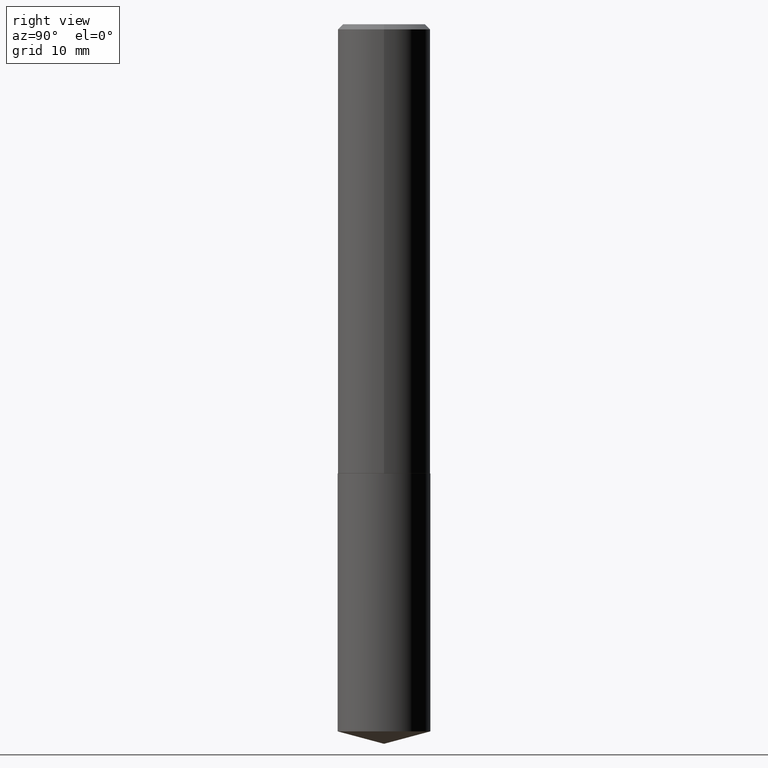
[diagram: clean part render]
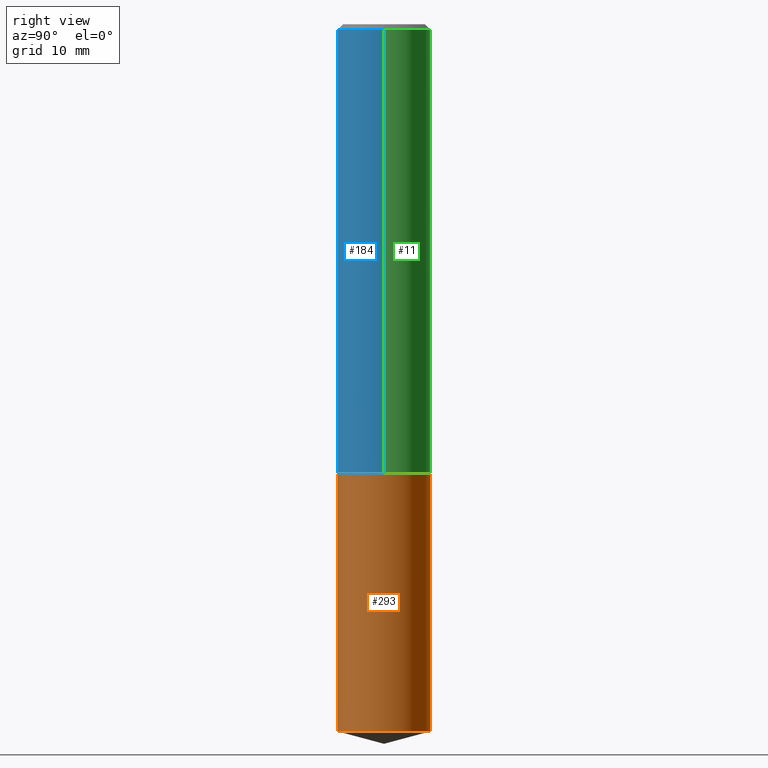
[diagram: same view with three faces highlighted in distinct colors, each labeled with its STEP entity id]
A machine part, right view with three faces highlighted in distinct colors.
Their STEP definitions:

[orange] entity #293 — the highlighted cylindrical surface (partial cylindrical patch) has radius 7.1501 mm, axis along (-0, 0, 1).
#15 = VERTEX_POINT ( 'NONE', #265 ) ;
#40 = CIRCLE ( 'NONE', #51, 0.2814999999999999725 ) ;
#47 = CARTESIAN_POINT ( 'NONE',  ( 2.000177801164748486E-15, 0.2814999999999904801, -2.728400000000001491 ) ) ;
#48 = CARTESIAN_POINT ( 'NONE',  ( -1.965703993768616963E-15, -0.2815000000000095204, -2.728399999999999270 ) ) ;
#51 = AXIS2_PLACEMENT_3D ( 'NONE', #130, #154, #366 ) ;
#52 = ORIENTED_EDGE ( 'NONE', *, *, #384, .F. ) ;
#60 = ORIENTED_EDGE ( 'NONE', *, *, #251, .T. ) ;
#69 = CARTESIAN_POINT ( 'NONE',  ( 6.672217090795527604E-29, -9.526157684899640905E-15, -2.728400000000000158 ) ) ;
#71 = DIRECTION ( 'NONE',  ( -6.982962677686265922E-15, -1.000000000000000000, 3.881844395970533976E-15 ) ) ;
#74 = DIRECTION ( 'NONE',  ( -2.445301347483331542E-29, 3.491721149235287761E-15, 1.000000000000000000 ) ) ;
#83 = VERTEX_POINT ( 'NONE', #320 ) ;
#125 = DIRECTION ( 'NONE',  ( -2.445301347483331542E-29, 3.491721149235287367E-15, 1.000000000000000000 ) ) ;
#130 = CARTESIAN_POINT ( 'NONE',  ( 1.050222486221045995E-28, -1.499514380840898218E-14, -4.294672302330639901 ) ) ;
#136 = EDGE_CURVE ( 'NONE', #146, #15, #258, .T. ) ;
#137 = VERTEX_POINT ( 'NONE', #48 ) ;
#146 = VERTEX_POINT ( 'NONE', #376 ) ;
#154 = DIRECTION ( 'NONE',  ( -2.445301347483331542E-29, 3.491721149235287761E-15, 1.000000000000000000 ) ) ;
#163 = AXIS2_PLACEMENT_3D ( 'NONE', #188, #252, #71 ) ;
#164 = CYLINDRICAL_SURFACE ( 'NONE', #193, 0.2814999999999999725 ) ;
#180 = ORIENTED_EDGE ( 'NONE', *, *, #136, .T. ) ;
#188 = CARTESIAN_POINT ( 'NONE',  ( 6.672217090795527604E-29, -9.526157684899640905E-15, -2.728400000000000158 ) ) ;
#193 = AXIS2_PLACEMENT_3D ( 'NONE', #69, #74, #246 ) ;
#217 = EDGE_LOOP ( 'NONE', ( #60, #180, #52, #346 ) ) ;
#222 = FACE_OUTER_BOUND ( 'NONE', #217, .T. ) ;
#235 = CARTESIAN_POINT ( 'NONE',  ( -1.965703993768616963E-15, -0.2815000000000095204, -2.728399999999999270 ) ) ;
#246 = DIRECTION ( 'NONE',  ( -6.982962677686265922E-15, -1.000000000000000000, 3.881844395970533976E-15 ) ) ;
#249 = EDGE_CURVE ( 'NONE', #83, #137, #273, .T. ) ;
#251 = EDGE_CURVE ( 'NONE', #83, #146, #40, .T. ) ;
#252 = DIRECTION ( 'NONE',  ( -2.445301347483331542E-29, 3.491721149235287761E-15, 1.000000000000000000 ) ) ;
#258 = LINE ( 'NONE', #47, #372 ) ;
#262 = VECTOR ( 'NONE', #125, 39.37007874015748143 ) ;
#265 = CARTESIAN_POINT ( 'NONE',  ( 2.000177801164787141E-15, 0.2814999999999904801, -2.728400000000001491 ) ) ;
#273 = LINE ( 'NONE', #235, #262 ) ;
#293 = ADVANCED_FACE ( 'NONE', ( #222 ), #164, .T. ) ;
#320 = CARTESIAN_POINT ( 'NONE',  ( -1.965703993768577914E-15, -0.2815000000000149050, -4.294672302330639013 ) ) ;
#346 = ORIENTED_EDGE ( 'NONE', *, *, #249, .F. ) ;
#355 = CIRCLE ( 'NONE', #163, 0.2814999999999999725 ) ;
#366 = DIRECTION ( 'NONE',  ( -6.982962677686265922E-15, -1.000000000000000000, 3.881844395970533976E-15 ) ) ;
#372 = VECTOR ( 'NONE', #382, 39.37007874015748143 ) ;
#376 = CARTESIAN_POINT ( 'NONE',  ( 2.000177801164786352E-15, 0.2814999999999848734, -4.294672302330640790 ) ) ;
#382 = DIRECTION ( 'NONE',  ( -2.445301347483331542E-29, 3.491721149235287367E-15, 1.000000000000000000 ) ) ;
#384 = EDGE_CURVE ( 'NONE', #137, #15, #355, .T. ) ;

[blue] entity #184 — the highlighted cylindrical surface (partial cylindrical patch) has radius 7.1501 mm, axis along (-0, 0, 1).
#14 = EDGE_CURVE ( 'NONE', #322, #348, #260, .T. ) ;
#16 = DIRECTION ( 'NONE',  ( -2.445468806185136597E-29, 3.491481338843145583E-15, 1.000000000000000000 ) ) ;
#23 = CARTESIAN_POINT ( 'NONE',  ( 6.670994356392434802E-29, -9.524411944230218613E-15, -2.727899999999999991 ) ) ;
#30 = VERTEX_POINT ( 'NONE', #267 ) ;
#75 = DIRECTION ( 'NONE',  ( 1.000000000000000000, -6.982962677686264344E-15, 0.000000000000000000 ) ) ;
#78 = CARTESIAN_POINT ( 'NONE',  ( -0.2815000000000003055, -7.524234143065534418E-15, -2.727899999999999991 ) ) ;
#85 = VERTEX_POINT ( 'NONE', #78 ) ;
#118 = LINE ( 'NONE', #147, #213 ) ;
#128 = CARTESIAN_POINT ( 'NONE',  ( 0.2815000000000001390, -1.965703993768684805E-15, 1.372643762386556638E-29 ) ) ;
#139 = VECTOR ( 'NONE', #239, 39.37007874015748143 ) ;
#147 = CARTESIAN_POINT ( 'NONE',  ( -0.2815000000000001390, 2.000177801164683011E-15, -1.384680227906756714E-29 ) ) ;
#151 = DIRECTION ( 'NONE',  ( -2.445468806185136597E-29, 3.491481338843145583E-15, 1.000000000000000000 ) ) ;
#155 = DIRECTION ( 'NONE',  ( -2.445468806185136597E-29, 3.491481338843145583E-15, 1.000000000000000000 ) ) ;
#166 = EDGE_CURVE ( 'NONE', #85, #322, #118, .T. ) ;
#182 = CYLINDRICAL_SURFACE ( 'NONE', #302, 0.2815000000000001390 ) ;
#184 = ADVANCED_FACE ( 'NONE', ( #233 ), #182, .T. ) ;
#211 = CARTESIAN_POINT ( 'NONE',  ( 7.642090019328603538E-31, -1.091087918388490390E-16, -0.03125000000000021511 ) ) ;
#213 = VECTOR ( 'NONE', #230, 39.37007874015748143 ) ;
#216 = CARTESIAN_POINT ( 'NONE',  ( 0.000000000000000000, 0.000000000000000000, 0.000000000000000000 ) ) ;
#218 = CARTESIAN_POINT ( 'NONE',  ( -0.2814999999999999725, -2.816582566869850057E-15, -0.03125000000000021511 ) ) ;
#228 = CIRCLE ( 'NONE', #287, 0.2815000000000003055 ) ;
#230 = DIRECTION ( 'NONE',  ( -2.445468806185136877E-29, 3.491481338843145188E-15, 1.000000000000000000 ) ) ;
#233 = FACE_OUTER_BOUND ( 'NONE', #310, .T. ) ;
#238 = ORIENTED_EDGE ( 'NONE', *, *, #261, .T. ) ;
#239 = DIRECTION ( 'NONE',  ( -2.445468806185136877E-29, 3.491481338843145188E-15, 1.000000000000000000 ) ) ;
#254 = AXIS2_PLACEMENT_3D ( 'NONE', #211, #151, #334 ) ;
#260 = CIRCLE ( 'NONE', #254, 0.2814999999999999725 ) ;
#261 = EDGE_CURVE ( 'NONE', #30, #348, #271, .T. ) ;
#267 = CARTESIAN_POINT ( 'NONE',  ( 0.2815000000000003055, -1.149011593799890421E-14, -2.727899999999999991 ) ) ;
#271 = LINE ( 'NONE', #128, #139 ) ;
#282 = ORIENTED_EDGE ( 'NONE', *, *, #14, .F. ) ;
#284 = ORIENTED_EDGE ( 'NONE', *, *, #166, .F. ) ;
#287 = AXIS2_PLACEMENT_3D ( 'NONE', #23, #16, #75 ) ;
#296 = ORIENTED_EDGE ( 'NONE', *, *, #316, .T. ) ;
#302 = AXIS2_PLACEMENT_3D ( 'NONE', #216, #155, #362 ) ;
#310 = EDGE_LOOP ( 'NONE', ( #284, #296, #238, #282 ) ) ;
#316 = EDGE_CURVE ( 'NONE', #85, #30, #228, .T. ) ;
#322 = VERTEX_POINT ( 'NONE', #218 ) ;
#334 = DIRECTION ( 'NONE',  ( 1.000000000000000000, -6.982962677686267499E-15, 0.000000000000000000 ) ) ;
#341 = CARTESIAN_POINT ( 'NONE',  ( 0.2814999999999999725, -2.074812785607533117E-15, -0.03125000000000021511 ) ) ;
#348 = VERTEX_POINT ( 'NONE', #341 ) ;
#362 = DIRECTION ( 'NONE',  ( 1.000000000000000000, -6.982962677686265922E-15, 4.876176775795935793E-29 ) ) ;

[green] entity #11 — the highlighted cylindrical surface (partial cylindrical patch) has radius 7.1501 mm, axis along (-0, 0, 1).
#10 = CIRCLE ( 'NONE', #153, 0.2815000000000003055 ) ;
#11 = ADVANCED_FACE ( 'NONE', ( #91 ), #95, .T. ) ;
#20 = ORIENTED_EDGE ( 'NONE', *, *, #261, .F. ) ;
#30 = VERTEX_POINT ( 'NONE', #267 ) ;
#33 = DIRECTION ( 'NONE',  ( -2.445468806185136597E-29, 3.491481338843145583E-15, 1.000000000000000000 ) ) ;
#59 = DIRECTION ( 'NONE',  ( -2.445468806185136597E-29, 3.491481338843145583E-15, 1.000000000000000000 ) ) ;
#67 = CARTESIAN_POINT ( 'NONE',  ( 6.670994356392434802E-29, -9.524411944230218613E-15, -2.727899999999999991 ) ) ;
#78 = CARTESIAN_POINT ( 'NONE',  ( -0.2815000000000003055, -7.524234143065534418E-15, -2.727899999999999991 ) ) ;
#81 = AXIS2_PLACEMENT_3D ( 'NONE', #203, #59, #175 ) ;
#85 = VERTEX_POINT ( 'NONE', #78 ) ;
#89 = CIRCLE ( 'NONE', #81, 0.2814999999999999725 ) ;
#91 = FACE_OUTER_BOUND ( 'NONE', #338, .T. ) ;
#95 = CYLINDRICAL_SURFACE ( 'NONE', #269, 0.2815000000000001390 ) ;
#97 = DIRECTION ( 'NONE',  ( -2.445468806185136597E-29, 3.491481338843145583E-15, 1.000000000000000000 ) ) ;
#118 = LINE ( 'NONE', #147, #213 ) ;
#128 = CARTESIAN_POINT ( 'NONE',  ( 0.2815000000000001390, -1.965703993768684805E-15, 1.372643762386556638E-29 ) ) ;
#139 = VECTOR ( 'NONE', #239, 39.37007874015748143 ) ;
#147 = CARTESIAN_POINT ( 'NONE',  ( -0.2815000000000001390, 2.000177801164683011E-15, -1.384680227906756714E-29 ) ) ;
#148 = ORIENTED_EDGE ( 'NONE', *, *, #187, .T. ) ;
#152 = DIRECTION ( 'NONE',  ( 1.000000000000000000, -6.982962677686264344E-15, 0.000000000000000000 ) ) ;
#153 = AXIS2_PLACEMENT_3D ( 'NONE', #67, #97, #152 ) ;
#166 = EDGE_CURVE ( 'NONE', #85, #322, #118, .T. ) ;
#175 = DIRECTION ( 'NONE',  ( 1.000000000000000000, -6.982962677686267499E-15, 0.000000000000000000 ) ) ;
#179 = EDGE_CURVE ( 'NONE', #348, #322, #89, .T. ) ;
#187 = EDGE_CURVE ( 'NONE', #30, #85, #10, .T. ) ;
#203 = CARTESIAN_POINT ( 'NONE',  ( 7.642090019328603538E-31, -1.091087918388490390E-16, -0.03125000000000021511 ) ) ;
#206 = ORIENTED_EDGE ( 'NONE', *, *, #179, .F. ) ;
#213 = VECTOR ( 'NONE', #230, 39.37007874015748143 ) ;
#218 = CARTESIAN_POINT ( 'NONE',  ( -0.2814999999999999725, -2.816582566869850057E-15, -0.03125000000000021511 ) ) ;
#230 = DIRECTION ( 'NONE',  ( -2.445468806185136877E-29, 3.491481338843145188E-15, 1.000000000000000000 ) ) ;
#239 = DIRECTION ( 'NONE',  ( -2.445468806185136877E-29, 3.491481338843145188E-15, 1.000000000000000000 ) ) ;
#261 = EDGE_CURVE ( 'NONE', #30, #348, #271, .T. ) ;
#267 = CARTESIAN_POINT ( 'NONE',  ( 0.2815000000000003055, -1.149011593799890421E-14, -2.727899999999999991 ) ) ;
#269 = AXIS2_PLACEMENT_3D ( 'NONE', #330, #33, #295 ) ;
#271 = LINE ( 'NONE', #128, #139 ) ;
#295 = DIRECTION ( 'NONE',  ( 1.000000000000000000, -6.982962677686265922E-15, 4.876176775795935793E-29 ) ) ;
#322 = VERTEX_POINT ( 'NONE', #218 ) ;
#326 = ORIENTED_EDGE ( 'NONE', *, *, #166, .T. ) ;
#330 = CARTESIAN_POINT ( 'NONE',  ( 0.000000000000000000, 0.000000000000000000, 0.000000000000000000 ) ) ;
#338 = EDGE_LOOP ( 'NONE', ( #148, #326, #206, #20 ) ) ;
#341 = CARTESIAN_POINT ( 'NONE',  ( 0.2814999999999999725, -2.074812785607533117E-15, -0.03125000000000021511 ) ) ;
#348 = VERTEX_POINT ( 'NONE', #341 ) ;